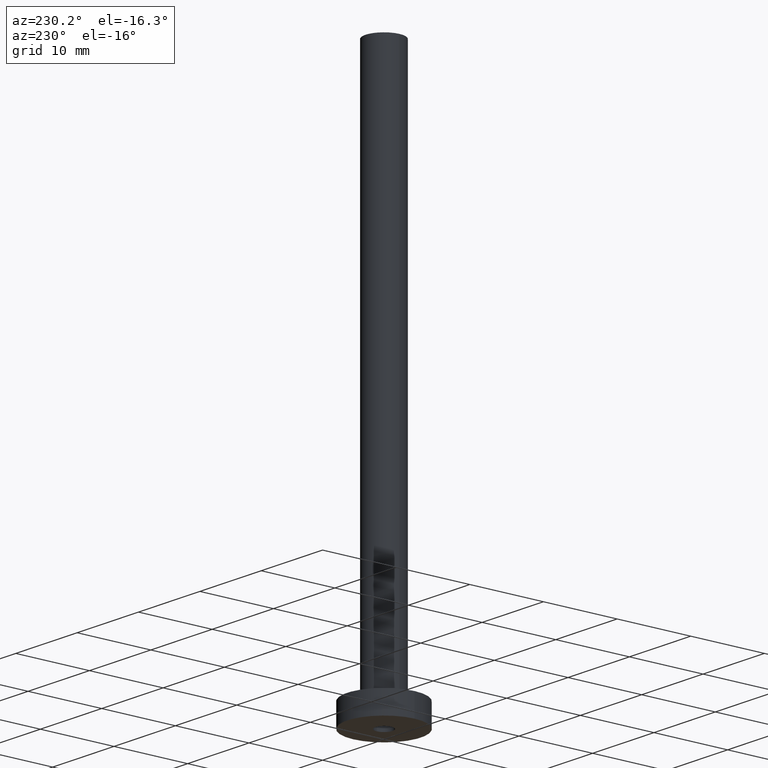
[diagram: clean part render]
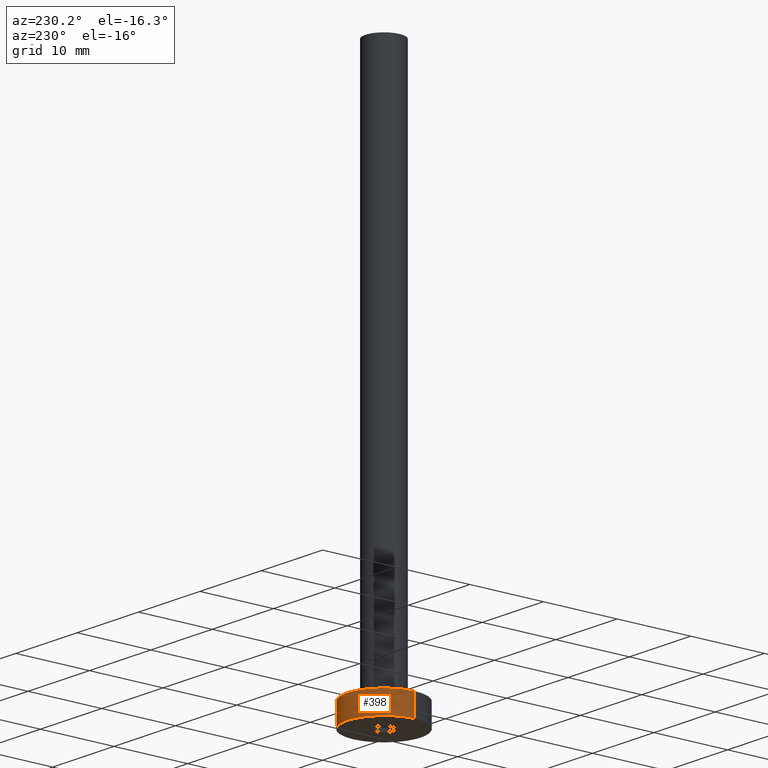
[diagram: same view with one face highlighted and labeled with its STEP entity id]
A machine part, auxiliary view. The second image highlights one B-rep face of the part: STEP entity #398.
In plain terms, the highlighted cylindrical surface (partial cylindrical patch) has radius 5 mm, axis along (-0, -0, -1).
Its self-contained STEP definition (entity closure, byte-faithful):
#8 = AXIS2_PLACEMENT_3D ( 'NONE', #276, #35, #387 ) ;
#14 = EDGE_LOOP ( 'NONE', ( #169, #26, #414, #412 ) ) ;
#26 = ORIENTED_EDGE ( 'NONE', *, *, #178, .T. ) ;
#35 = DIRECTION ( 'NONE',  ( -0.000000000000000000, -0.000000000000000000, -1.000000000000000000 ) ) ;
#72 = CARTESIAN_POINT ( 'NONE',  ( 0.000000000000000000, 0.000000000000000000, 0.000000000000000000 ) ) ;
#87 = LINE ( 'NONE', #224, #375 ) ;
#92 = VERTEX_POINT ( 'NONE', #317 ) ;
#127 = CIRCLE ( 'NONE', #436, 5.000000000000000000 ) ;
#137 = FACE_OUTER_BOUND ( 'NONE', #14, .T. ) ;
#140 = CYLINDRICAL_SURFACE ( 'NONE', #8, 5.000000000000000000 ) ;
#164 = DIRECTION ( 'NONE',  ( 0.000000000000000000, 0.000000000000000000, 1.000000000000000000 ) ) ;
#165 = VERTEX_POINT ( 'NONE', #401 ) ;
#169 = ORIENTED_EDGE ( 'NONE', *, *, #359, .F. ) ;
#174 = DIRECTION ( 'NONE',  ( -0.000000000000000000, -0.000000000000000000, -1.000000000000000000 ) ) ;
#178 = EDGE_CURVE ( 'NONE', #416, #92, #87, .T. ) ;
#192 = DIRECTION ( 'NONE',  ( 1.000000000000000000, 0.000000000000000000, 0.000000000000000000 ) ) ;
#208 = VECTOR ( 'NONE', #174, 1000.000000000000000 ) ;
#212 = DIRECTION ( 'NONE',  ( 1.000000000000000000, 0.000000000000000000, 0.000000000000000000 ) ) ;
#224 = CARTESIAN_POINT ( 'NONE',  ( 5.000000000000000000, 6.123233995736766282E-16, 3.000000000000000000 ) ) ;
#227 = EDGE_CURVE ( 'NONE', #92, #165, #127, .T. ) ;
#248 = CARTESIAN_POINT ( 'NONE',  ( -5.000000000000000000, 0.000000000000000000, 3.000000000000000000 ) ) ;
#252 = CARTESIAN_POINT ( 'NONE',  ( 5.000000000000000000, 6.123233995736766282E-16, 3.000000000000000000 ) ) ;
#276 = CARTESIAN_POINT ( 'NONE',  ( 0.000000000000000000, 0.000000000000000000, 3.000000000000000000 ) ) ;
#289 = DIRECTION ( 'NONE',  ( -0.000000000000000000, -0.000000000000000000, -1.000000000000000000 ) ) ;
#293 = VERTEX_POINT ( 'NONE', #457 ) ;
#316 = LINE ( 'NONE', #248, #208 ) ;
#317 = CARTESIAN_POINT ( 'NONE',  ( 5.000000000000000000, 6.123233995736766282E-16, 0.000000000000000000 ) ) ;
#323 = AXIS2_PLACEMENT_3D ( 'NONE', #407, #164, #192 ) ;
#359 = EDGE_CURVE ( 'NONE', #416, #293, #400, .T. ) ;
#375 = VECTOR ( 'NONE', #289, 1000.000000000000000 ) ;
#387 = DIRECTION ( 'NONE',  ( -1.000000000000000000, 0.000000000000000000, 0.000000000000000000 ) ) ;
#393 = DIRECTION ( 'NONE',  ( 0.000000000000000000, 0.000000000000000000, 1.000000000000000000 ) ) ;
#398 = ADVANCED_FACE ( 'NONE', ( #137 ), #140, .T. ) ;
#400 = CIRCLE ( 'NONE', #323, 5.000000000000000000 ) ;
#401 = CARTESIAN_POINT ( 'NONE',  ( -5.000000000000000000, 0.000000000000000000, 0.000000000000000000 ) ) ;
#407 = CARTESIAN_POINT ( 'NONE',  ( 0.000000000000000000, 0.000000000000000000, 3.000000000000000000 ) ) ;
#412 = ORIENTED_EDGE ( 'NONE', *, *, #418, .F. ) ;
#414 = ORIENTED_EDGE ( 'NONE', *, *, #227, .T. ) ;
#416 = VERTEX_POINT ( 'NONE', #252 ) ;
#418 = EDGE_CURVE ( 'NONE', #293, #165, #316, .T. ) ;
#436 = AXIS2_PLACEMENT_3D ( 'NONE', #72, #393, #212 ) ;
#457 = CARTESIAN_POINT ( 'NONE',  ( -5.000000000000000000, 0.000000000000000000, 3.000000000000000000 ) ) ;